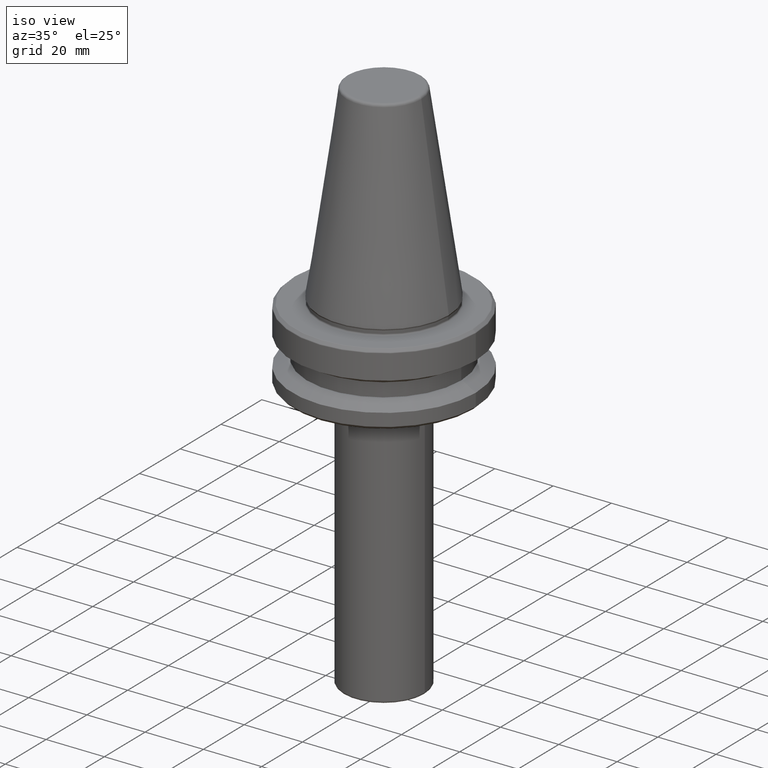
[diagram: clean part render]
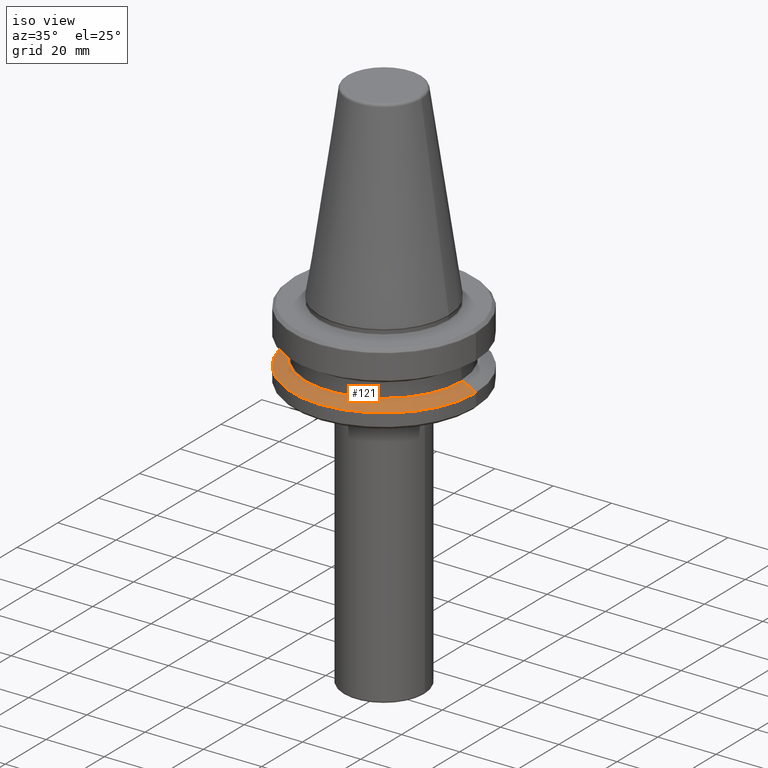
[diagram: same view with one face highlighted and labeled with its STEP entity id]
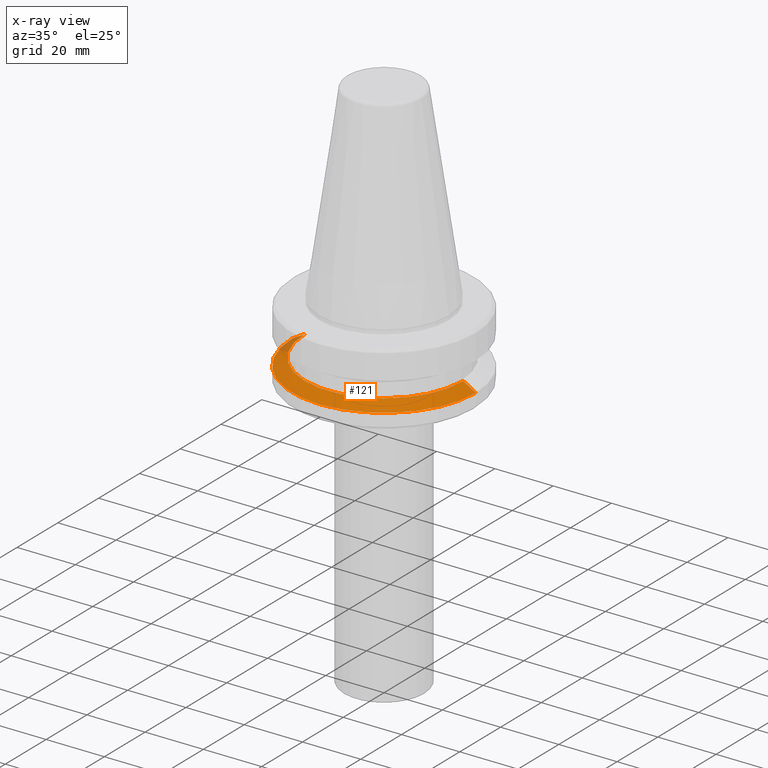
[diagram: x-ray of the same camera — body ghosted, the highlighted face saturated]
A machine part, iso view. The second image highlights one B-rep face of the part: STEP entity #121.
The next image is the same camera in x-ray: the body ghosted, the highlighted face saturated — about 4% of this face is hidden behind the body in this view.
In plain terms, the highlighted conical surface has half-angle 60 deg.
Its self-contained STEP definition (entity closure, byte-faithful):
#5 = ORIENTED_EDGE ( 'NONE', *, *, #950, .F. ) ;
#78 = VERTEX_POINT ( 'NONE', #858 ) ;
#121 = ADVANCED_FACE ( 'NONE', ( #933 ), #909, .T. ) ;
#139 = VERTEX_POINT ( 'NONE', #620 ) ;
#202 = CARTESIAN_POINT ( 'NONE',  ( -27.17012701892217700, 0.0000000000000000000, -19.09999999999999800 ) ) ;
#207 = AXIS2_PLACEMENT_3D ( 'NONE', #899, #302, #1006 ) ;
#234 = DIRECTION ( 'NONE',  ( -0.0000000000000000000, -0.0000000000000000000, -1.000000000000000000 ) ) ;
#259 = EDGE_CURVE ( 'NONE', #351, #78, #887, .T. ) ;
#290 = AXIS2_PLACEMENT_3D ( 'NONE', #790, #234, #897 ) ;
#292 = ORIENTED_EDGE ( 'NONE', *, *, #1171, .F. ) ;
#302 = DIRECTION ( 'NONE',  ( -0.0000000000000000000, -0.0000000000000000000, -1.000000000000000000 ) ) ;
#324 = ORIENTED_EDGE ( 'NONE', *, *, #259, .T. ) ;
#327 = AXIS2_PLACEMENT_3D ( 'NONE', #736, #341, #460 ) ;
#341 = DIRECTION ( 'NONE',  ( -0.0000000000000000000, -0.0000000000000000000, -1.000000000000000000 ) ) ;
#351 = VERTEX_POINT ( 'NONE', #584 ) ;
#405 = CARTESIAN_POINT ( 'NONE',  ( 27.17012701892217700, 3.327380908615005900E-015, -19.09999999999999800 ) ) ;
#460 = DIRECTION ( 'NONE',  ( -1.000000000000000000, 0.0000000000000000000, 0.0000000000000000000 ) ) ;
#465 = VECTOR ( 'NONE', #1129, 1000.000000000000000 ) ;
#475 = LINE ( 'NONE', #405, #465 ) ;
#534 = CIRCLE ( 'NONE', #290, 31.50000000000000700 ) ;
#584 = CARTESIAN_POINT ( 'NONE',  ( 27.17012701892217700, 3.592509162964584900E-015, -19.09999999999999800 ) ) ;
#598 = CARTESIAN_POINT ( 'NONE',  ( 31.50000000000000700, 3.857637417314163500E-015, -21.59985333118215700 ) ) ;
#603 = LINE ( 'NONE', #202, #617 ) ;
#617 = VECTOR ( 'NONE', #846, 1000.000000000000000 ) ;
#620 = CARTESIAN_POINT ( 'NONE',  ( -31.50000000000000700, 0.0000000000000000000, -21.59985333118215700 ) ) ;
#736 = CARTESIAN_POINT ( 'NONE',  ( 0.0000000000000000000, 0.0000000000000000000, -19.09999999999999800 ) ) ;
#790 = CARTESIAN_POINT ( 'NONE',  ( 0.0000000000000000000, 0.0000000000000000000, -21.59985333118215700 ) ) ;
#837 = EDGE_CURVE ( 'NONE', #78, #139, #603, .T. ) ;
#846 = DIRECTION ( 'NONE',  ( -0.8660254037844400400, 0.0000000000000000000, -0.4999999999999976100 ) ) ;
#858 = CARTESIAN_POINT ( 'NONE',  ( -27.17012701892217700, 0.0000000000000000000, -19.09999999999999800 ) ) ;
#887 = CIRCLE ( 'NONE', #207, 27.17012701892217700 ) ;
#897 = DIRECTION ( 'NONE',  ( -1.000000000000000000, 0.0000000000000000000, 0.0000000000000000000 ) ) ;
#899 = CARTESIAN_POINT ( 'NONE',  ( 0.0000000000000000000, 0.0000000000000000000, -19.09999999999999800 ) ) ;
#909 = CONICAL_SURFACE ( 'NONE', #327, 27.17012701892217700, 1.047197551196600500 ) ;
#933 = FACE_OUTER_BOUND ( 'NONE', #1206, .T. ) ;
#950 = EDGE_CURVE ( 'NONE', #1042, #139, #534, .T. ) ;
#1006 = DIRECTION ( 'NONE',  ( -1.000000000000000000, 0.0000000000000000000, 0.0000000000000000000 ) ) ;
#1042 = VERTEX_POINT ( 'NONE', #598 ) ;
#1117 = ORIENTED_EDGE ( 'NONE', *, *, #837, .T. ) ;
#1129 = DIRECTION ( 'NONE',  ( 0.8660254037844400400, 1.060575238724908600E-016, -0.4999999999999976100 ) ) ;
#1171 = EDGE_CURVE ( 'NONE', #351, #1042, #475, .T. ) ;
#1206 = EDGE_LOOP ( 'NONE', ( #292, #324, #1117, #5 ) ) ;